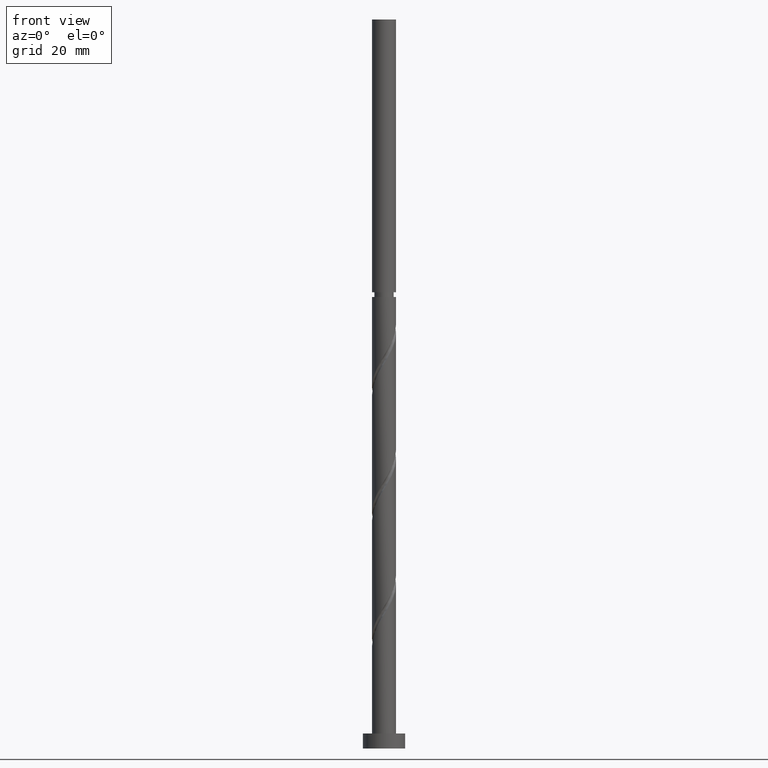
[diagram: clean part render]
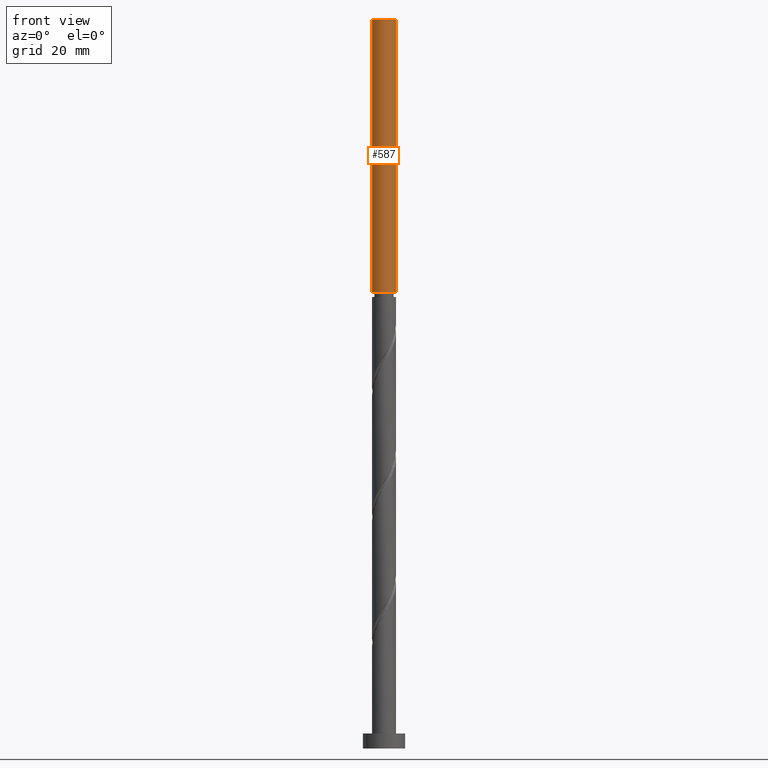
[diagram: same view with one face highlighted and labeled with its STEP entity id]
A machine part, front view. The second image highlights one B-rep face of the part: STEP entity #587.
In plain terms, the highlighted cylindrical surface (edge-blend (fillet) strip) has radius 4 mm, axis along (-0, -0, -1).
Its self-contained STEP definition (entity closure, byte-faithful):
#30 = VERTEX_POINT ( 'NONE', #923 ) ;
#133 = DIRECTION ( 'NONE',  ( -0.000000000000000000, -0.000000000000000000, -1.000000000000000000 ) ) ;
#134 = EDGE_CURVE ( 'NONE', #698, #159, #464, .T. ) ;
#153 = DIRECTION ( 'NONE',  ( -0.000000000000000000, -0.000000000000000000, -1.000000000000000000 ) ) ;
#159 = VERTEX_POINT ( 'NONE', #1459 ) ;
#206 = DIRECTION ( 'NONE',  ( -1.000000000000000000, 0.000000000000000000, 0.000000000000000000 ) ) ;
#249 = EDGE_CURVE ( 'NONE', #30, #698, #964, .T. ) ;
#256 = ORIENTED_EDGE ( 'NONE', *, *, #1367, .T. ) ;
#326 = EDGE_LOOP ( 'NONE', ( #469, #1810, #256, #1534 ) ) ;
#371 = CYLINDRICAL_SURFACE ( 'NONE', #1279, 4.000000000000000000 ) ;
#412 = DIRECTION ( 'NONE',  ( -1.000000000000000000, 0.000000000000000000, 0.000000000000000000 ) ) ;
#464 = LINE ( 'NONE', #1444, #716 ) ;
#469 = ORIENTED_EDGE ( 'NONE', *, *, #134, .F. ) ;
#564 = CARTESIAN_POINT ( 'NONE',  ( -4.000000000000000000, 0.000000000000000000, 242.0000000000000000 ) ) ;
#587 = ADVANCED_FACE ( 'NONE', ( #1487 ), #371, .T. ) ;
#698 = VERTEX_POINT ( 'NONE', #1612 ) ;
#708 = CIRCLE ( 'NONE', #1575, 3.999999999999993339 ) ;
#716 = VECTOR ( 'NONE', #153, 1000.000000000000000 ) ;
#717 = DIRECTION ( 'NONE',  ( -0.000000000000000000, -0.000000000000000000, -1.000000000000000000 ) ) ;
#846 = LINE ( 'NONE', #564, #903 ) ;
#889 = CARTESIAN_POINT ( 'NONE',  ( 0.000000000000000000, 0.000000000000000000, 242.0000000000000000 ) ) ;
#903 = VECTOR ( 'NONE', #717, 1000.000000000000000 ) ;
#913 = DIRECTION ( 'NONE',  ( 0.000000000000000000, 0.000000000000000000, 1.000000000000000000 ) ) ;
#923 = CARTESIAN_POINT ( 'NONE',  ( -4.000000000000000000, 0.000000000000000000, 242.0000000000000000 ) ) ;
#944 = CARTESIAN_POINT ( 'NONE',  ( 0.000000000000000000, 0.000000000000000000, 242.0000000000000000 ) ) ;
#964 = CIRCLE ( 'NONE', #1554, 4.000000000000000000 ) ;
#977 = DIRECTION ( 'NONE',  ( 1.000000000000000000, 0.000000000000000000, 0.000000000000000000 ) ) ;
#1061 = VERTEX_POINT ( 'NONE', #1685 ) ;
#1279 = AXIS2_PLACEMENT_3D ( 'NONE', #944, #1358, #206 ) ;
#1358 = DIRECTION ( 'NONE',  ( -0.000000000000000000, -0.000000000000000000, -1.000000000000000000 ) ) ;
#1367 = EDGE_CURVE ( 'NONE', #30, #1061, #846, .T. ) ;
#1385 = CARTESIAN_POINT ( 'NONE',  ( 0.000000000000000000, 0.000000000000000000, 151.4648890055086952 ) ) ;
#1444 = CARTESIAN_POINT ( 'NONE',  ( 4.000000000000000000, 4.898587196589412829E-16, 242.0000000000000000 ) ) ;
#1459 = CARTESIAN_POINT ( 'NONE',  ( 3.999999999999993339, 4.898587196589407898E-16, 151.4648890055086952 ) ) ;
#1487 = FACE_OUTER_BOUND ( 'NONE', #326, .T. ) ;
#1534 = ORIENTED_EDGE ( 'NONE', *, *, #1832, .F. ) ;
#1554 = AXIS2_PLACEMENT_3D ( 'NONE', #889, #913, #977 ) ;
#1575 = AXIS2_PLACEMENT_3D ( 'NONE', #1385, #133, #412 ) ;
#1612 = CARTESIAN_POINT ( 'NONE',  ( 4.000000000000000000, 4.898587196589412829E-16, 242.0000000000000000 ) ) ;
#1685 = CARTESIAN_POINT ( 'NONE',  ( -3.999999999999993339, 0.000000000000000000, 151.4648890055086952 ) ) ;
#1810 = ORIENTED_EDGE ( 'NONE', *, *, #249, .F. ) ;
#1832 = EDGE_CURVE ( 'NONE', #159, #1061, #708, .T. ) ;